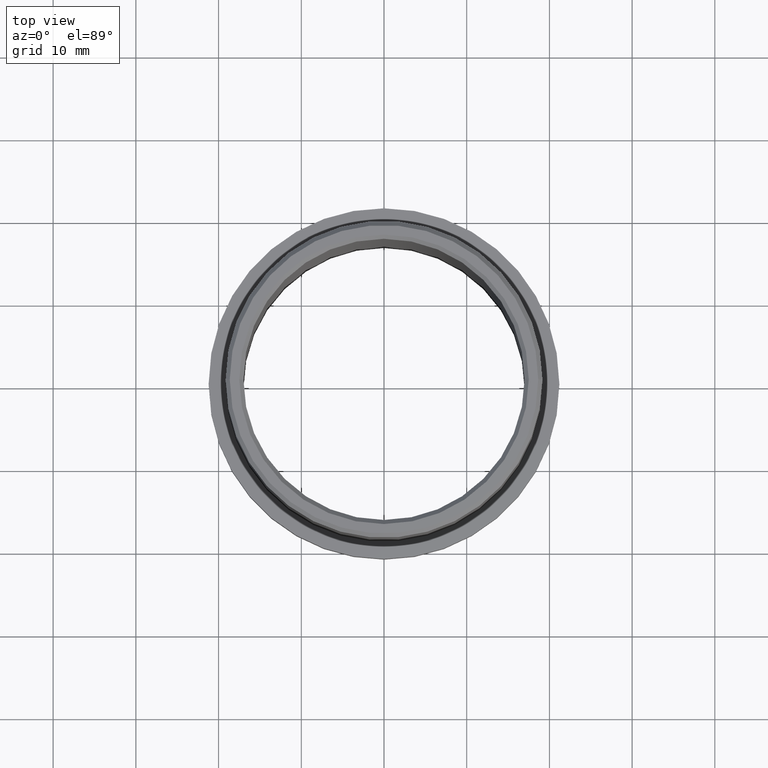
[diagram: clean part render]
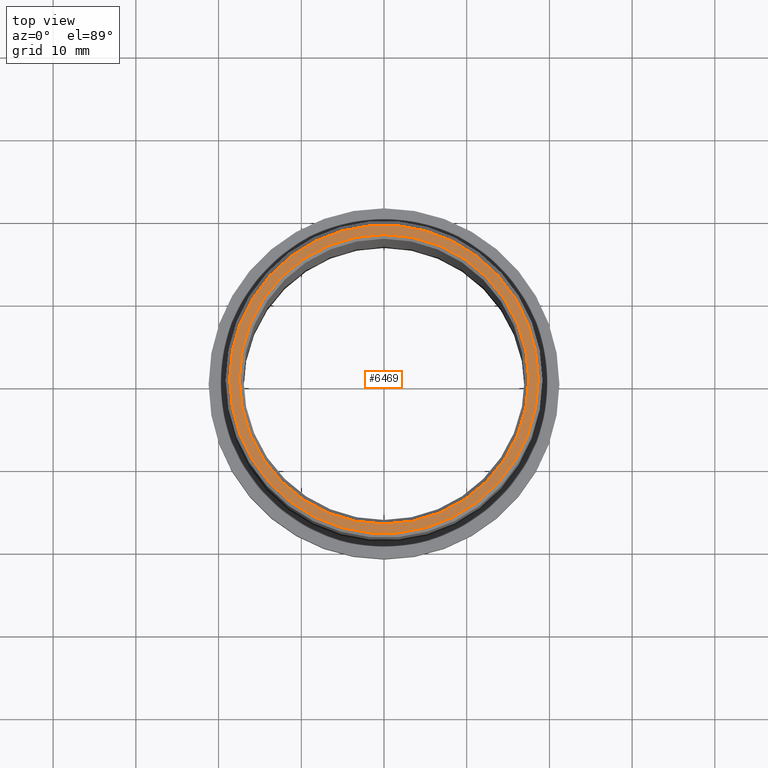
[diagram: same view with one face highlighted and labeled with its STEP entity id]
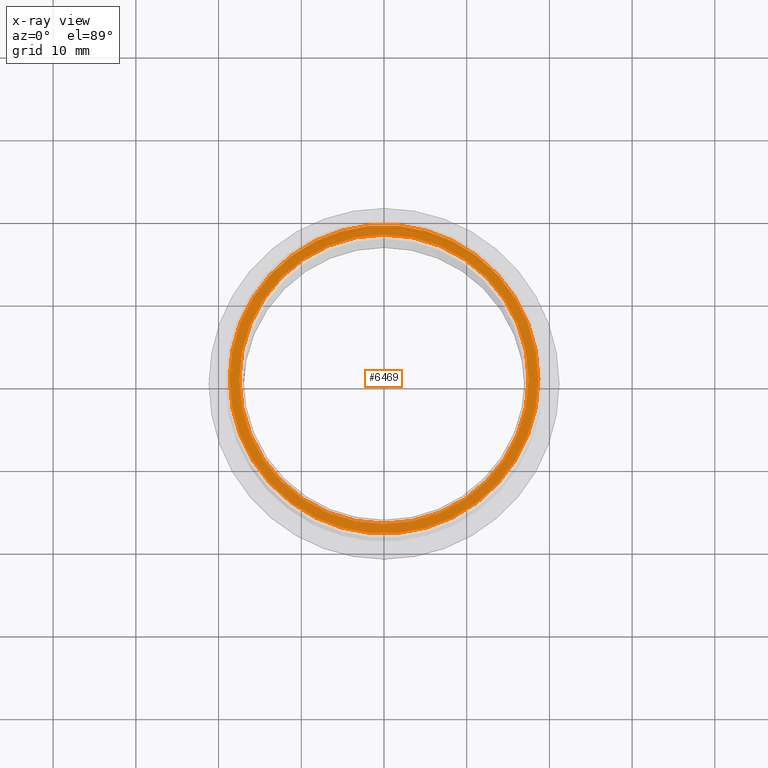
[diagram: x-ray of the same camera — body ghosted, the highlighted face saturated]
A machine part, top view. The second image highlights one B-rep face of the part: STEP entity #6469.
The next image is the same camera in x-ray: the body ghosted, the highlighted face saturated — about 0% of this face is hidden behind the body in this view.
In plain terms, the highlighted planar face has unit normal (0, 0, 1).
Its self-contained STEP definition (entity closure, byte-faithful):
#483 = CIRCLE ( 'NONE', #6114, 17.50000000000000000 ) ;
#593 = CIRCLE ( 'NONE', #18391, 18.65000000000002700 ) ;
#2550 = DIRECTION ( 'NONE',  ( 1.000000000000000000, 0.0000000000000000000, 0.0000000000000000000 ) ) ;
#3098 = PLANE ( 'NONE',  #18692 ) ;
#3169 = DIRECTION ( 'NONE',  ( 1.000000000000000000, 0.0000000000000000000, -0.0000000000000000000 ) ) ;
#3325 = DIRECTION ( 'NONE',  ( 0.0000000000000000000, 0.0000000000000000000, 1.000000000000000000 ) ) ;
#3848 = EDGE_LOOP ( 'NONE', ( #6120, #11729 ) ) ;
#4124 = DIRECTION ( 'NONE',  ( -0.0000000000000000000, -0.0000000000000000000, -1.000000000000000000 ) ) ;
#4242 = CIRCLE ( 'NONE', #6963, 17.50000000000000000 ) ;
#4333 = CARTESIAN_POINT ( 'NONE',  ( -18.65000000000002700, 0.0000000000000000000, 32.50000000000000000 ) ) ;
#4704 = EDGE_CURVE ( 'NONE', #16060, #7463, #483, .T. ) ;
#5130 = VERTEX_POINT ( 'NONE', #11833 ) ;
#5700 = CARTESIAN_POINT ( 'NONE',  ( 0.0000000000000000000, 0.0000000000000000000, 32.50000000000000000 ) ) ;
#6045 = CARTESIAN_POINT ( 'NONE',  ( 0.0000000000000000000, 0.0000000000000000000, 32.50000000000000000 ) ) ;
#6114 = AXIS2_PLACEMENT_3D ( 'NONE', #5700, #4124, #19566 ) ;
#6120 = ORIENTED_EDGE ( 'NONE', *, *, #9488, .T. ) ;
#6469 = ADVANCED_FACE ( 'NONE', ( #16786, #20175 ), #3098, .T. ) ;
#6742 = DIRECTION ( 'NONE',  ( 0.0000000000000000000, 0.0000000000000000000, 1.000000000000000000 ) ) ;
#6963 = AXIS2_PLACEMENT_3D ( 'NONE', #6045, #8281, #2550 ) ;
#7463 = VERTEX_POINT ( 'NONE', #8233 ) ;
#8054 = DIRECTION ( 'NONE',  ( 1.000000000000000000, 0.0000000000000000000, 0.0000000000000000000 ) ) ;
#8233 = CARTESIAN_POINT ( 'NONE',  ( 17.50000000000000000, 0.0000000000000000000, 32.50000000000000000 ) ) ;
#8281 = DIRECTION ( 'NONE',  ( -0.0000000000000000000, -0.0000000000000000000, -1.000000000000000000 ) ) ;
#8309 = VERTEX_POINT ( 'NONE', #4333 ) ;
#8979 = ORIENTED_EDGE ( 'NONE', *, *, #17059, .T. ) ;
#9269 = ORIENTED_EDGE ( 'NONE', *, *, #13247, .T. ) ;
#9398 = DIRECTION ( 'NONE',  ( 0.0000000000000000000, 0.0000000000000000000, 1.000000000000000000 ) ) ;
#9488 = EDGE_CURVE ( 'NONE', #7463, #16060, #4242, .T. ) ;
#9624 = CARTESIAN_POINT ( 'NONE',  ( 0.0000000000000000000, 0.0000000000000000000, 32.50000000000000000 ) ) ;
#10679 = EDGE_LOOP ( 'NONE', ( #8979, #9269 ) ) ;
#10919 = CARTESIAN_POINT ( 'NONE',  ( 0.0000000000000000000, 0.0000000000000000000, 32.50000000000000000 ) ) ;
#11206 = DIRECTION ( 'NONE',  ( 1.000000000000000000, 0.0000000000000000000, 0.0000000000000000000 ) ) ;
#11729 = ORIENTED_EDGE ( 'NONE', *, *, #4704, .T. ) ;
#11776 = AXIS2_PLACEMENT_3D ( 'NONE', #9624, #6742, #11206 ) ;
#11833 = CARTESIAN_POINT ( 'NONE',  ( 18.65000000000002700, 2.314582450388499200E-015, 32.50000000000000000 ) ) ;
#13247 = EDGE_CURVE ( 'NONE', #5130, #8309, #593, .T. ) ;
#13953 = CARTESIAN_POINT ( 'NONE',  ( 0.0000000000000000000, 0.0000000000000000000, 32.50000000000000000 ) ) ;
#15036 = CIRCLE ( 'NONE', #11776, 18.65000000000002700 ) ;
#16060 = VERTEX_POINT ( 'NONE', #18834 ) ;
#16786 = FACE_OUTER_BOUND ( 'NONE', #10679, .T. ) ;
#17059 = EDGE_CURVE ( 'NONE', #8309, #5130, #15036, .T. ) ;
#18391 = AXIS2_PLACEMENT_3D ( 'NONE', #13953, #3325, #8054 ) ;
#18692 = AXIS2_PLACEMENT_3D ( 'NONE', #10919, #9398, #3169 ) ;
#18834 = CARTESIAN_POINT ( 'NONE',  ( -17.50000000000000000, 2.143131898507867900E-015, 32.50000000000000000 ) ) ;
#19566 = DIRECTION ( 'NONE',  ( 1.000000000000000000, 0.0000000000000000000, 0.0000000000000000000 ) ) ;
#20175 = FACE_BOUND ( 'NONE', #3848, .T. ) ;